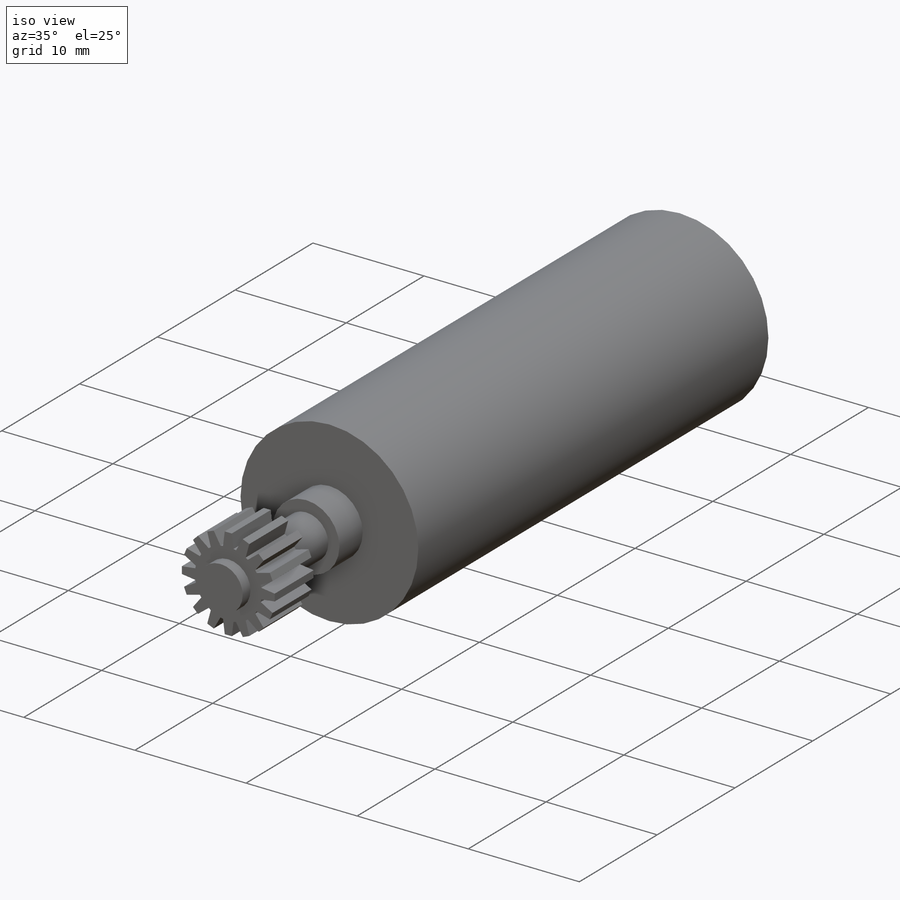
[diagram: iso view]
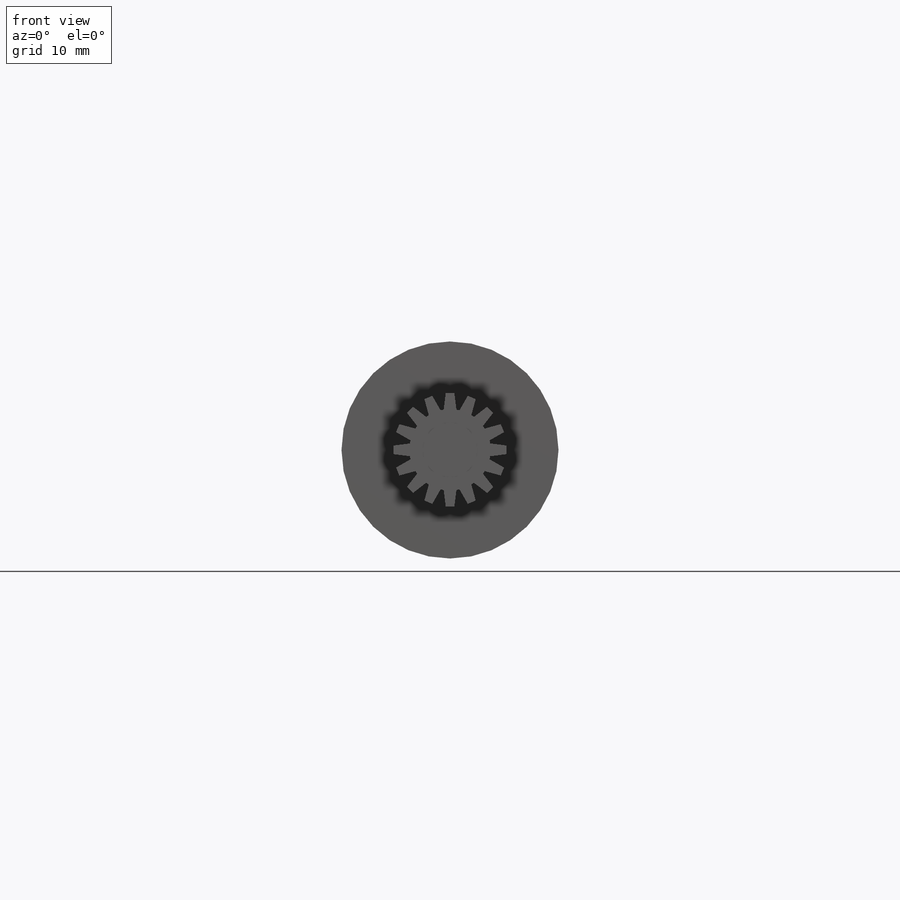
[diagram: front view]
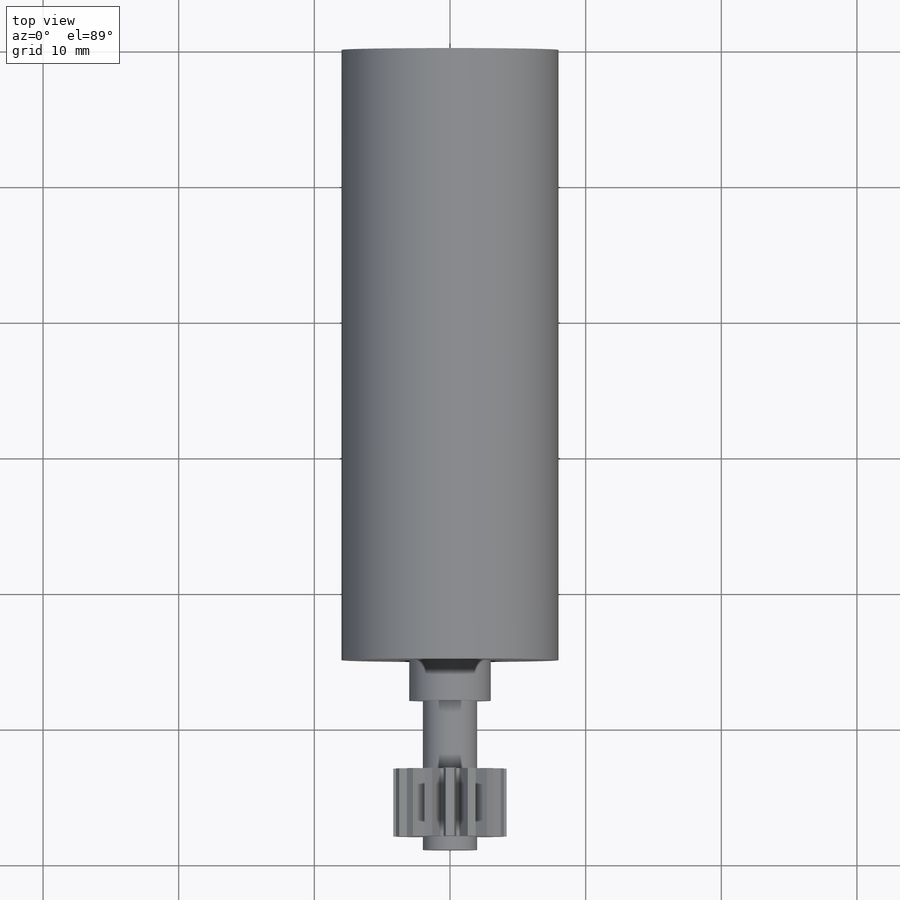
[diagram: top view]
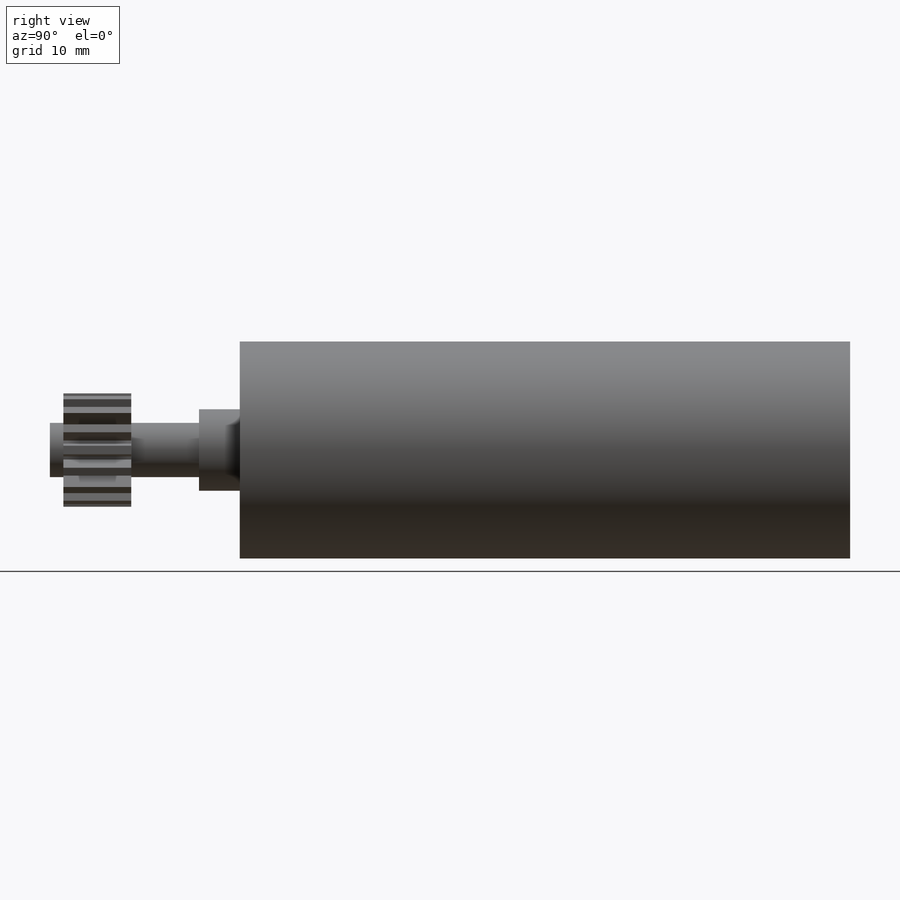
[diagram: right view]
SOLIDWORKS PART (.sldprt)
format: sldprt  version: not decoded by parser v0  size: 227,328 bytes
history: native  units: mm
features: sketch x6, extrude x6, plane x3, material x1, pattern_circular x1 (+9 scaffold rows collapsed)
feature tree (26):
  scaffold x9  (default folders/planes/origin — collapsed)
  material  "Material <não especificado>"
  plane  "Plano frontal"
  plane  "Plano superior"
  plane  "Plano direito"
  sketch  "Esboço1"  dims[D1=20.0mm]
  extrude  "Ressalto-extrusão1"  Depth=45mm
  sketch  "Esboço2"  dims[D1=5.0mm]
  extrude  "Ressalto-extrusão2"  Depth=3mm
  sketch  "Esboço3"  dims[D1=8.0mm]
  extrude  "Ressalto-extrusão3"  Depth=5mm
  sketch  "Esboço4"  dims[D1=4.0mm]
  extrude  "Ressalto-extrusão4"  Depth=5mm
  sketch  "Esboço5"  dims[D1=~2.20663mm]
  extrude  "Ressalto-extrusão5"  Depth=1mm
  sketch  "Esboço6"  dims[D1=1.0mm]
  extrude  "Ressalto-extrusão6"  Depth=5mm
  pattern_circular  "PadrãoCircular1"  Count=16 Angle=360deg
decode coverage: 13 of 13 modeling features carry decoded parameters
note: ~ marks probable driven/reference dimensions
note: suppression state not decoded; provenance and decode notes live in map.json
